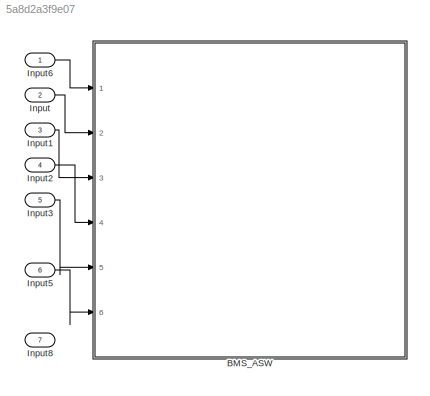
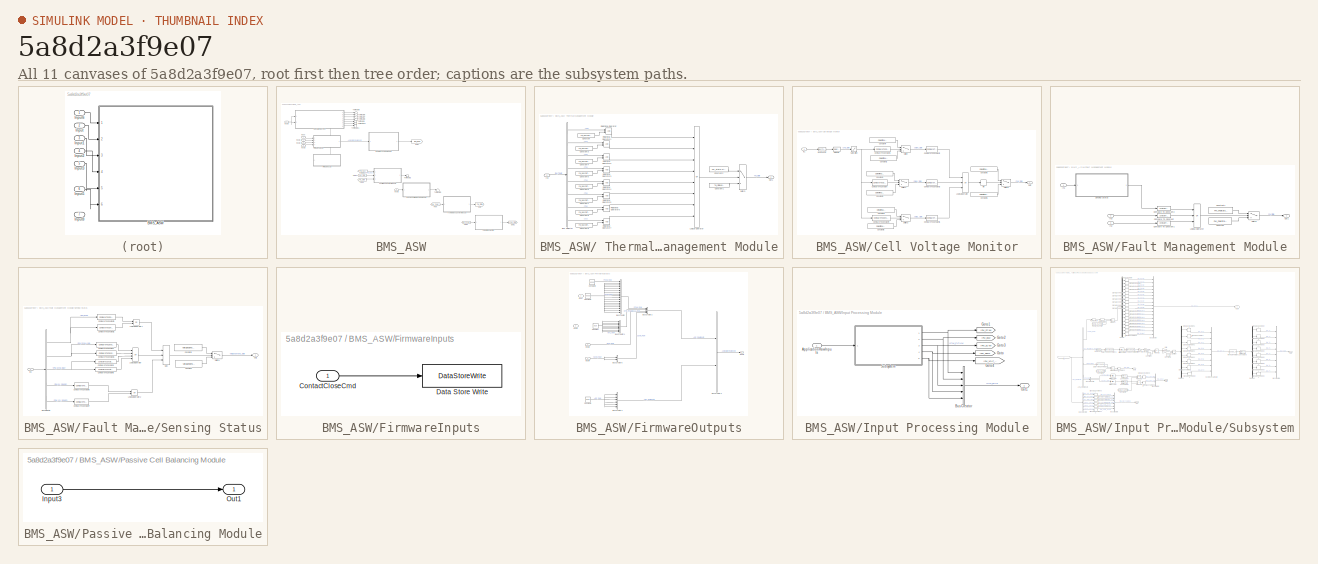
[diagram: thumbnail index - all 11 canvases of the model, root first then tree order]
MODEL slx_5a8d2a3f9e07
KIND model
CONFIG AbsTol = auto
CONFIG EnableMultiTasking = off
CONFIG FixedStep = auto
CONFIG MaxStep = auto
CONFIG MinStep = auto
CONFIG RelTol = 1e-3
CONFIG SampleTimeConstraint = Unconstrained
CONFIG SolverName = VariableStepAuto
CONFIG StartTime = 0.0
CONFIG StopTime = 10.0
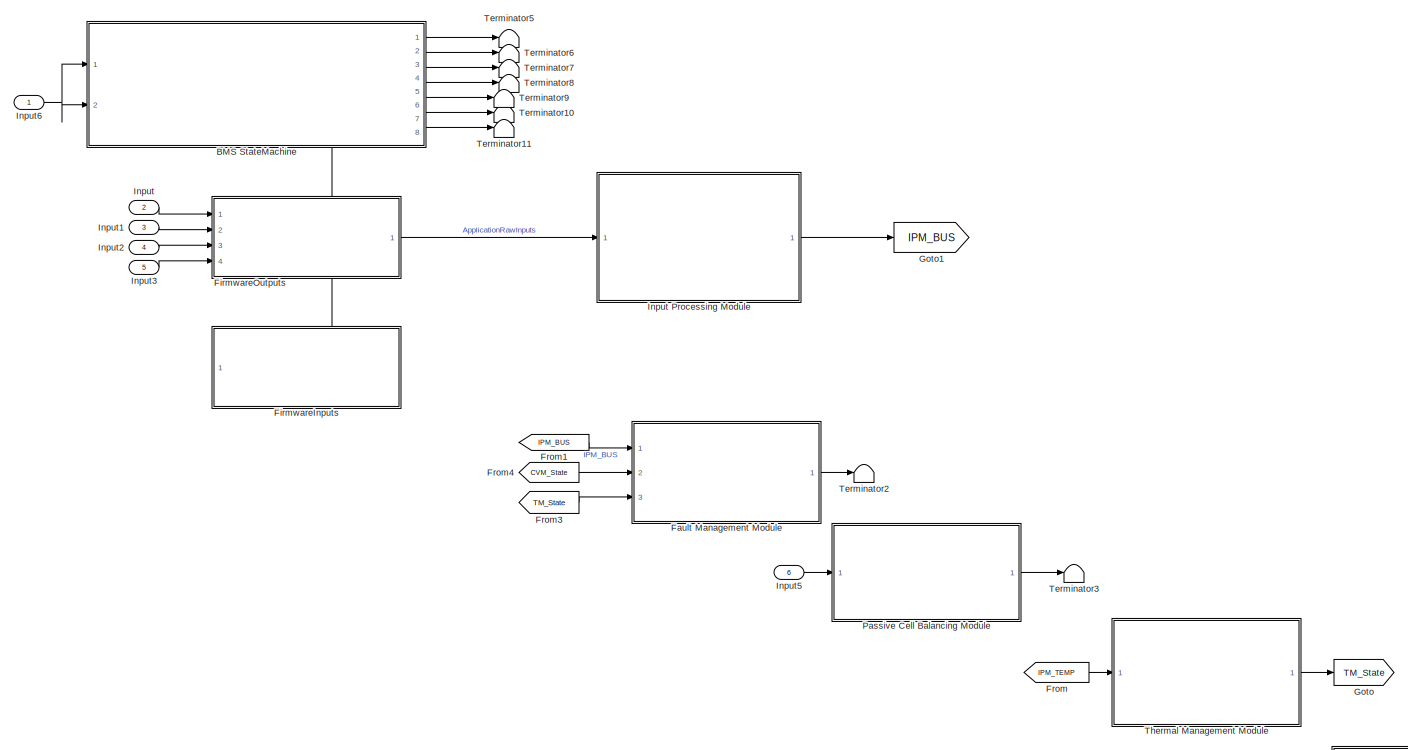
[diagram: BMS_ASW - part 1/2, most of the canvas]
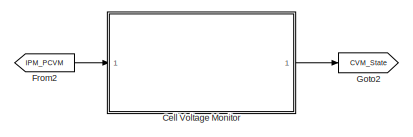
[diagram: BMS_ASW - part 2/2, bottom right region]
BLOCK [SubSystem] BMS_ASW
  Ports = [6]
  RequestExecContextInheritance = off
  ShowPortLabels = SignalName
BLOCK [SubSystem] BMS_ASW/ Thermal Management Module
  Ports = [1, 1]
  RequestExecContextInheritance = off
  ShowPortLabels = SignalName
BLOCK [BusSelector] BMS_ASW/ Thermal Management Module/Bus Selector
  OutputSignals = T0,T1,T2,T3,T4,T5,T6,T7
  Ports = [1, 8]
BLOCK [Constant] BMS_ASW/ Thermal Management Module/Constant
  OutDataTypeStr = single
  Value = FM_MaxCellTemp
BLOCK [Constant] BMS_ASW/ Thermal Management Module/Constant1
  OutDataTypeStr = Enum: TM_State
  Value = TM_State.NORMAL
BLOCK [Constant] BMS_ASW/ Thermal Management Module/Constant2
  OutDataTypeStr = Enum: TM_State
  Value = TM_State.FAULT
BLOCK [Constant] BMS_ASW/ Thermal Management Module/Constant3
  OutDataTypeStr = single
  Value = FM_MaxCellTemp
BLOCK [Constant] BMS_ASW/ Thermal Management Module/Constant4
  OutDataTypeStr = single
  Value = FM_MaxCellTemp
BLOCK [Constant] BMS_ASW/ Thermal Management Module/Constant5
  OutDataTypeStr = single
  Value = FM_MaxCellTemp
BLOCK [Constant] BMS_ASW/ Thermal Management Module/Constant6
  OutDataTypeStr = single
  Value = FM_MaxCellTemp
BLOCK [Constant] BMS_ASW/ Thermal Management Module/Constant7
  OutDataTypeStr = single
  Value = FM_MaxCellTemp
BLOCK [Constant] BMS_ASW/ Thermal Management Module/Constant8
  OutDataTypeStr = single
  Value = FM_MaxCellTemp
BLOCK [Constant] BMS_ASW/ Thermal Management Module/Constant9
  OutDataTypeStr = single
  Value = FM_MaxCellTemp
BLOCK [Inport] BMS_ASW/ Thermal Management Module/In2
BLOCK [Logic] BMS_ASW/ Thermal Management Module/Logical Operator
  AllPortsSameDT = off
  Inputs = 8
  Operator = OR
  OutDataTypeStr = boolean
  Ports = [8, 1]
BLOCK [Outport] BMS_ASW/ Thermal Management Module/Out1
BLOCK [RelationalOperator] BMS_ASW/ Thermal Management Module/Relational Operator
  InputSameDT = off
  OutDataTypeStr = boolean
  Ports = [2, 1]
  RndMeth = Simplest
BLOCK [RelationalOperator] BMS_ASW/ Thermal Management Module/Relational Operator1
  InputSameDT = off
  OutDataTypeStr = boolean
  Ports = [2, 1]
  RndMeth = Simplest
BLOCK [RelationalOperator] BMS_ASW/ Thermal Management Module/Relational Operator2
  InputSameDT = off
  OutDataTypeStr = boolean
  Ports = [2, 1]
  RndMeth = Simplest
BLOCK [RelationalOperator] BMS_ASW/ Thermal Management Module/Relational Operator3
  InputSameDT = off
  OutDataTypeStr = boolean
  Ports = [2, 1]
  RndMeth = Simplest
BLOCK [RelationalOperator] BMS_ASW/ Thermal Management Module/Relational Operator4
  InputSameDT = off
  OutDataTypeStr = boolean
  Ports = [2, 1]
  RndMeth = Simplest
BLOCK [RelationalOperator] BMS_ASW/ Thermal Management Module/Relational Operator5
  InputSameDT = off
  OutDataTypeStr = boolean
  Ports = [2, 1]
  RndMeth = Simplest
BLOCK [RelationalOperator] BMS_ASW/ Thermal Management Module/Relational Operator6
  InputSameDT = off
  OutDataTypeStr = boolean
  Ports = [2, 1]
  RndMeth = Simplest
BLOCK [RelationalOperator] BMS_ASW/ Thermal Management Module/Relational Operator7
  InputSameDT = off
  OutDataTypeStr = boolean
  Ports = [2, 1]
  RndMeth = Simplest
BLOCK [Switch] BMS_ASW/ Thermal Management Module/Switch
  Criteria = u2 ~= 0
  InputSameDT = off
  SaturateOnIntegerOverflow = off
BLOCK [SubSystem] BMS_ASW/BMS StateMachine
  PortSchema = {"entries":[{"content":{"sides":[{"content":{"connectorIds":["Out1","In1","In2"]},"type":"ConnectorPlacement.EquallySpacedRectSide","uuid":"dc16a3f0-45ad-4628-8e0a-af4b5ce38429"},{"content":{"connectorIds":["Out2","Out3","Out4","Out5","Out6","Out7","Out8"],"side":"RIGHT"},"type":"ConnectorPlacement.EquallySpacedRectSide","uuid":"5db1e924-41b1-4ec2-a438-dc82d825ed1c"},{"content":{"connectorIds":[],...<+295ch>
  Ports = [2, 8]
  ReferencedSubsystem = BMS_Master_StateMachine1
  RequestExecContextInheritance = off
BLOCK [SubSystem] BMS_ASW/Cell Voltage Monitor
  Ports = [1, 1]
  RequestExecContextInheritance = off
  ShowPortLabels = SignalName
BLOCK [BusToVector] BMS_ASW/Cell Voltage Monitor/Bus to Vector
BLOCK [Reference] BMS_ASW/Cell Voltage Monitor/Compare To Constant  REF=simulink/Logic and Bit
Operations/Compare
To Constant
  Ports = [1, 1]
  SourceBlock = simulink/Logic and Bit\nOperations/Compare\nTo Constant
  SourceProductBaseCode = SL
  SourceType = Compare To Constant
BLOCK [Reference] BMS_ASW/Cell Voltage Monitor/Compare To Constant1  REF=simulink/Logic and Bit
Operations/Compare
To Constant
  Ports = [1, 1]
  SourceBlock = simulink/Logic and Bit\nOperations/Compare\nTo Constant
  SourceProductBaseCode = SL
  SourceType = Compare To Constant
BLOCK [Reference] BMS_ASW/Cell Voltage Monitor/Compare To Constant2  REF=simulink/Logic and Bit
Operations/Compare
To Constant
  Ports = [1, 1]
  SourceBlock = simulink/Logic and Bit\nOperations/Compare\nTo Constant
  SourceProductBaseCode = SL
  SourceType = Compare To Constant
BLOCK [Reference] BMS_ASW/Cell Voltage Monitor/Compare To Constant3  REF=simulink/Logic and Bit
Operations/Compare
To Constant
  Ports = [1, 1]
  SourceBlock = simulink/Logic and Bit\nOperations/Compare\nTo Constant
  SourceProductBaseCode = SL
  SourceType = Compare To Constant
BLOCK [Reference] BMS_ASW/Cell Voltage Monitor/Compare To Constant4  REF=simulink/Logic and Bit
Operations/Compare
To Constant
  Ports = [1, 1]
  SourceBlock = simulink/Logic and Bit\nOperations/Compare\nTo Constant
  SourceProductBaseCode = SL
  SourceType = Compare To Constant
BLOCK [Reference] BMS_ASW/Cell Voltage Monitor/Compare To Constant5  REF=simulink/Logic and Bit
Operations/Compare
To Constant
  Ports = [1, 1]
  SourceBlock = simulink/Logic and Bit\nOperations/Compare\nTo Constant
  SourceProductBaseCode = SL
  SourceType = Compare To Constant
BLOCK [Constant] BMS_ASW/Cell Voltage Monitor/Constant1
  Value = CellVoltFault_State.UV_FAULT
BLOCK [Constant] BMS_ASW/Cell Voltage Monitor/Constant2
  Value = CellVoltFault_State.OK
BLOCK [Constant] BMS_ASW/Cell Voltage Monitor/Constant3
  Value = CellVoltFault_State.OK
BLOCK [Constant] BMS_ASW/Cell Voltage Monitor/Constant4
  Value = CellVoltFault_State.OV_FAULT
BLOCK [Constant] BMS_ASW/Cell Voltage Monitor/Constant5
  Value = CellVoltFault_State.OK
BLOCK [Constant] BMS_ASW/Cell Voltage Monitor/Constant6
  Value = CellVoltFault_State.NOT_OK
BLOCK [Constant] BMS_ASW/Cell Voltage Monitor/Constant7
  Value = CellVoltFault_State.OPEN_WIRE
BLOCK [Constant] BMS_ASW/Cell Voltage Monitor/Constant8
  Value = CellVoltFault_State.OK
BLOCK [Inport] BMS_ASW/Cell Voltage Monitor/In1
BLOCK [Logic] BMS_ASW/Cell Voltage Monitor/Logical Operator
  AllPortsSameDT = off
  Inputs = 3
  Operator = OR
  OutDataTypeStr = boolean
  Ports = [3, 1]
BLOCK [MinMax] BMS_ASW/Cell Voltage Monitor/Min
  Function = max
  Ports = [1, 1]
BLOCK [Outport] BMS_ASW/Cell Voltage Monitor/Out2
BLOCK [Saturate] BMS_ASW/Cell Voltage Monitor/Saturation
  LowerLimit = 0
  UpperLimit = 5.0
BLOCK [Selector] BMS_ASW/Cell Voltage Monitor/Selector
  IndexOptions = Select all
  Indices = [1 18]
  InputPortWidth = 18
  OutputSizes = 1
  Ports = [1, 1]
BLOCK [Switch] BMS_ASW/Cell Voltage Monitor/Switch
  Criteria = u2 ~= 0
  InputSameDT = off
  SaturateOnIntegerOverflow = off
BLOCK [Switch] BMS_ASW/Cell Voltage Monitor/Switch1
  Criteria = u2 ~= 0
  InputSameDT = off
  SaturateOnIntegerOverflow = off
BLOCK [Switch] BMS_ASW/Cell Voltage Monitor/Switch2
  Criteria = u2 ~= 0
  InputSameDT = off
  SaturateOnIntegerOverflow = off
BLOCK [Switch] BMS_ASW/Cell Voltage Monitor/Switch3
  Criteria = u2 ~= 0
  InputSameDT = off
  SaturateOnIntegerOverflow = off
BLOCK [SubSystem] BMS_ASW/Fault Management Module
  Ports = [3, 1]
  RequestExecContextInheritance = off
BLOCK [Reference] BMS_ASW/Fault Management Module/Compare To Constant  REF=simulink/Logic and Bit
Operations/Compare
To Constant
  Ports = [1, 1]
  SourceBlock = simulink/Logic and Bit\nOperations/Compare\nTo Constant
  SourceProductBaseCode = SL
  SourceType = Compare To Constant
BLOCK [Reference] BMS_ASW/Fault Management Module/Compare To Constant1  REF=simulink/Logic and Bit
Operations/Compare
To Constant
  Ports = [1, 1]
  SourceBlock = simulink/Logic and Bit\nOperations/Compare\nTo Constant
  SourceProductBaseCode = SL
  SourceType = Compare To Constant
BLOCK [Reference] BMS_ASW/Fault Management Module/Compare To Constant2  REF=simulink/Logic and Bit
Operations/Compare
To Constant
  Ports = [1, 1]
  SourceBlock = simulink/Logic and Bit\nOperations/Compare\nTo Constant
  SourceProductBaseCode = SL
  SourceType = Compare To Constant
BLOCK [Constant] BMS_ASW/Fault Management Module/Constant
  Value = FM_FaultState.OK
BLOCK [Constant] BMS_ASW/Fault Management Module/Constant1
  Value = FM_FaultState.NOT_OK
BLOCK [Inport] BMS_ASW/Fault Management Module/In1
BLOCK [Inport] BMS_ASW/Fault Management Module/In2
  Port = 3
BLOCK [Inport] BMS_ASW/Fault Management Module/In3
  Port = 2
BLOCK [Logic] BMS_ASW/Fault Management Module/Logical Operator
  AllPortsSameDT = off
  Inputs = 3
  Operator = OR
  OutDataTypeStr = boolean
  Ports = [3, 1]
BLOCK [Outport] BMS_ASW/Fault Management Module/Out1
BLOCK [SubSystem] BMS_ASW/Fault Management Module/Sensing Status
  Ports = [1, 1]
  RequestExecContextInheritance = off
  ShowPortLabels = SignalName
BLOCK [BusSelector] BMS_ASW/Fault Management Module/Sensing Status/Bus Selector
  OutputSignals = IPM_BVM,IPM_SCVM.IPM_SCVM_LOW,IPM_SCVM.IPM_SCVM_HIGH,IPM_VOLT_SENSE.IPM_5V_SENSE,IPM_VOLT_SENSE.IPM_12V_SENSE
  Ports = [1, 5]
BLOCK [Reference] BMS_ASW/Fault Management Module/Sensing Status/Compare To Constant  REF=simulink/Logic and Bit
Operations/Compare
To Constant
  Ports = [1, 1]
  SourceBlock = simulink/Logic and Bit\nOperations/Compare\nTo Constant
  SourceProductBaseCode = SL
  SourceType = Compare To Constant
BLOCK [Reference] BMS_ASW/Fault Management Module/Sensing Status/Compare To Constant1  REF=simulink/Logic and Bit
Operations/Compare
To Constant
  Ports = [1, 1]
  SourceBlock = simulink/Logic and Bit\nOperations/Compare\nTo Constant
  SourceProductBaseCode = SL
  SourceType = Compare To Constant
BLOCK [Reference] BMS_ASW/Fault Management Module/Sensing Status/Compare To Constant2  REF=simulink/Logic and Bit
Operations/Compare
To Constant
  Ports = [1, 1]
  SourceBlock = simulink/Logic and Bit\nOperations/Compare\nTo Constant
  SourceProductBaseCode = SL
  SourceType = Compare To Constant
BLOCK [Reference] BMS_ASW/Fault Management Module/Sensing Status/Compare To Constant3  REF=simulink/Logic and Bit
Operations/Compare
To Constant
  Ports = [1, 1]
  SourceBlock = simulink/Logic and Bit\nOperations/Compare\nTo Constant
  SourceProductBaseCode = SL
  SourceType = Compare To Constant
BLOCK [Reference] BMS_ASW/Fault Management Module/Sensing Status/Compare To Constant4  REF=simulink/Logic and Bit
Operations/Compare
To Constant
  Ports = [1, 1]
  SourceBlock = simulink/Logic and Bit\nOperations/Compare\nTo Constant
  SourceProductBaseCode = SL
  SourceType = Compare To Constant
BLOCK [Reference] BMS_ASW/Fault Management Module/Sensing Status/Compare To Constant5  REF=simulink/Logic and Bit
Operations/Compare
To Constant
  Ports = [1, 1]
  SourceBlock = simulink/Logic and Bit\nOperations/Compare\nTo Constant
  SourceProductBaseCode = SL
  SourceType = Compare To Constant
BLOCK [Reference] BMS_ASW/Fault Management Module/Sensing Status/Compare To Constant6  REF=simulink/Logic and Bit
Operations/Compare
To Constant
  Ports = [1, 1]
  SourceBlock = simulink/Logic and Bit\nOperations/Compare\nTo Constant
  SourceProductBaseCode = SL
  SourceType = Compare To Constant
BLOCK [Reference] BMS_ASW/Fault Management Module/Sensing Status/Compare To Constant7  REF=simulink/Logic and Bit
Operations/Compare
To Constant
  Ports = [1, 1]
  SourceBlock = simulink/Logic and Bit\nOperations/Compare\nTo Constant
  SourceProductBaseCode = SL
  SourceType = Compare To Constant
BLOCK [Constant] BMS_ASW/Fault Management Module/Sensing Status/Constant
  Value = VoltageSensing_State.OK
BLOCK [Constant] BMS_ASW/Fault Management Module/Sensing Status/Constant1
  Value = VoltageSensing_State.NOT_OK
BLOCK [Inport] BMS_ASW/Fault Management Module/Sensing Status/In3
BLOCK [Logic] BMS_ASW/Fault Management Module/Sensing Status/Logical Operator
  AllPortsSameDT = off
  Inputs = 4
  Operator = OR
  OutDataTypeStr = boolean
  Ports = [4, 1]
BLOCK [Logic] BMS_ASW/Fault Management Module/Sensing Status/Logical Operator1
  AllPortsSameDT = off
  Operator = OR
  OutDataTypeStr = boolean
  Ports = [2, 1]
BLOCK [Logic] BMS_ASW/Fault Management Module/Sensing Status/Logical Operator2
  AllPortsSameDT = off
  Operator = OR
  OutDataTypeStr = boolean
  Ports = [2, 1]
BLOCK [MinMax] BMS_ASW/Fault Management Module/Sensing Status/Max
  Function = max
  Inputs = 3
  Ports = [3, 1]
BLOCK [Outport] BMS_ASW/Fault Management Module/Sensing Status/Out1
BLOCK [Switch] BMS_ASW/Fault Management Module/Sensing Status/Switch1
  Criteria = u2 ~= 0
  InputSameDT = off
  SaturateOnIntegerOverflow = off
BLOCK [Switch] BMS_ASW/Fault Management Module/Switch
  Criteria = u2 ~= 0
  InputSameDT = off
  SaturateOnIntegerOverflow = off
BLOCK [SubSystem] BMS_ASW/FirmwareInputs
  Ports = [1]
  RequestExecContextInheritance = off
BLOCK [Inport] BMS_ASW/FirmwareInputs/ContactCloseCmd
BLOCK [DataStoreWrite] BMS_ASW/FirmwareInputs/Data Store Write
  DataStoreName = ContactorCmd
  IndexOptions = Index vector (dialog)
  Indices = 1
  OutputSizes = 1
  Ports = [1]
BLOCK [SubSystem] BMS_ASW/FirmwareOutputs
  Ports = [4, 1]
  RequestExecContextInheritance = off
  ShowPortLabels = SignalName
BLOCK [BusCreator] BMS_ASW/FirmwareOutputs/Bus Creator
  DisplayOption = bar
  InheritFromInputs = off
  Inputs = 18
  OutDataTypeStr = Bus: PCVM_Raw
  Ports = [18, 1]
BLOCK [BusCreator] BMS_ASW/FirmwareOutputs/Bus Creator1
  DisplayOption = bar
  InheritFromInputs = off
  Inputs = 8
  OutDataTypeStr = Bus: NTC_Resistance_Raw
  Ports = [8, 1]
BLOCK [BusCreator] BMS_ASW/FirmwareOutputs/Bus Creator2
  DisplayOption = bar
  InheritFromInputs = off
  Inputs = 4
  OutDataTypeStr = Bus: AFE_RawInputs
  Ports = [4, 1]
BLOCK [BusCreator] BMS_ASW/FirmwareOutputs/Bus Creator3
  DisplayOption = bar
  InheritFromInputs = off
  Inputs = 2
  OutDataTypeStr = Bus: ApplicationRawInputs
  Ports = [2, 1]
BLOCK [BusCreator] BMS_ASW/FirmwareOutputs/Bus Creator4
  DisplayOption = bar
  InheritFromInputs = off
  Inputs = 6
  OutDataTypeStr = Bus: ADC_RawInputs
  Ports = [6, 1]
BLOCK [BusCreator] BMS_ASW/FirmwareOutputs/Bus Creator5
  DisplayOption = bar
  InheritFromInputs = on
  Inputs = 2
  Ports = [2, 1]
BLOCK [Constant] BMS_ASW/FirmwareOutputs/Constant
  OutDataTypeStr = uint16
  Value = 528
BLOCK [Constant] BMS_ASW/FirmwareOutputs/Constant1
  OutDataTypeStr = uint16
  Value = 40000
BLOCK [Constant] BMS_ASW/FirmwareOutputs/Constant2
  OutDataTypeStr = uint16
  Value = 16000
BLOCK [Constant] BMS_ASW/FirmwareOutputs/Constant3
  OutDataTypeStr = single
  Value = 4.925
BLOCK [Inport] BMS_ASW/FirmwareOutputs/Input
  OutDataTypeStr = uint16
BLOCK [Inport] BMS_ASW/FirmwareOutputs/Input1
  OutDataTypeStr = uint16
  Port = 2
BLOCK [Inport] BMS_ASW/FirmwareOutputs/Input2
  OutDataTypeStr = uint16
  Port = 3
BLOCK [Outport] BMS_ASW/FirmwareOutputs/Input3
BLOCK [Inport] BMS_ASW/FirmwareOutputs/Input4
  OutDataTypeStr = uint16
  Port = 4
BLOCK [From] BMS_ASW/From
  GotoTag = IPM_TEMP
  TagVisibility = global
BLOCK [From] BMS_ASW/From1
  GotoTag = IPM_BUS
  TagVisibility = global
BLOCK [From] BMS_ASW/From2
  GotoTag = IPM_PCVM
  TagVisibility = global
BLOCK [From] BMS_ASW/From3
  GotoTag = TM_State
  TagVisibility = global
BLOCK [From] BMS_ASW/From4
  GotoTag = CVM_State
  TagVisibility = global
BLOCK [Goto] BMS_ASW/Goto
  GotoTag = TM_State
  TagVisibility = global
BLOCK [Goto] BMS_ASW/Goto1
  GotoTag = IPM_BUS
  TagVisibility = global
BLOCK [Goto] BMS_ASW/Goto2
  GotoTag = CVM_State
  TagVisibility = global
BLOCK [Inport] BMS_ASW/Input
  Port = 2
BLOCK [SubSystem] BMS_ASW/Input Processing Module
  Ports = [1, 1]
  RequestExecContextInheritance = off
  ShowPortLabels = SignalName
BLOCK [Inport] BMS_ASW/Input Processing Module/ApplicationRawInputs
BLOCK [BusCreator] BMS_ASW/Input Processing Module/Bus Creator
  DisplayOption = bar
  InheritFromInputs = on
  Inputs = 5
  Ports = [5, 1]
BLOCK [Goto] BMS_ASW/Input Processing Module/Goto
  GotoTag = IPM_TEMP
  TagVisibility = global
BLOCK [Goto] BMS_ASW/Input Processing Module/Goto1
  GotoTag = IPM_PCVM
  TagVisibility = global
BLOCK [Goto] BMS_ASW/Input Processing Module/Goto2
  GotoTag = IPM_BVM
  TagVisibility = global
BLOCK [Goto] BMS_ASW/Input Processing Module/Goto3
  GotoTag = IPM_SCVM
  TagVisibility = global
BLOCK [Goto] BMS_ASW/Input Processing Module/Goto4
  GotoTag = IPM_VOLT_SENSE
  TagVisibility = global
BLOCK [Outport] BMS_ASW/Input Processing Module/Out1
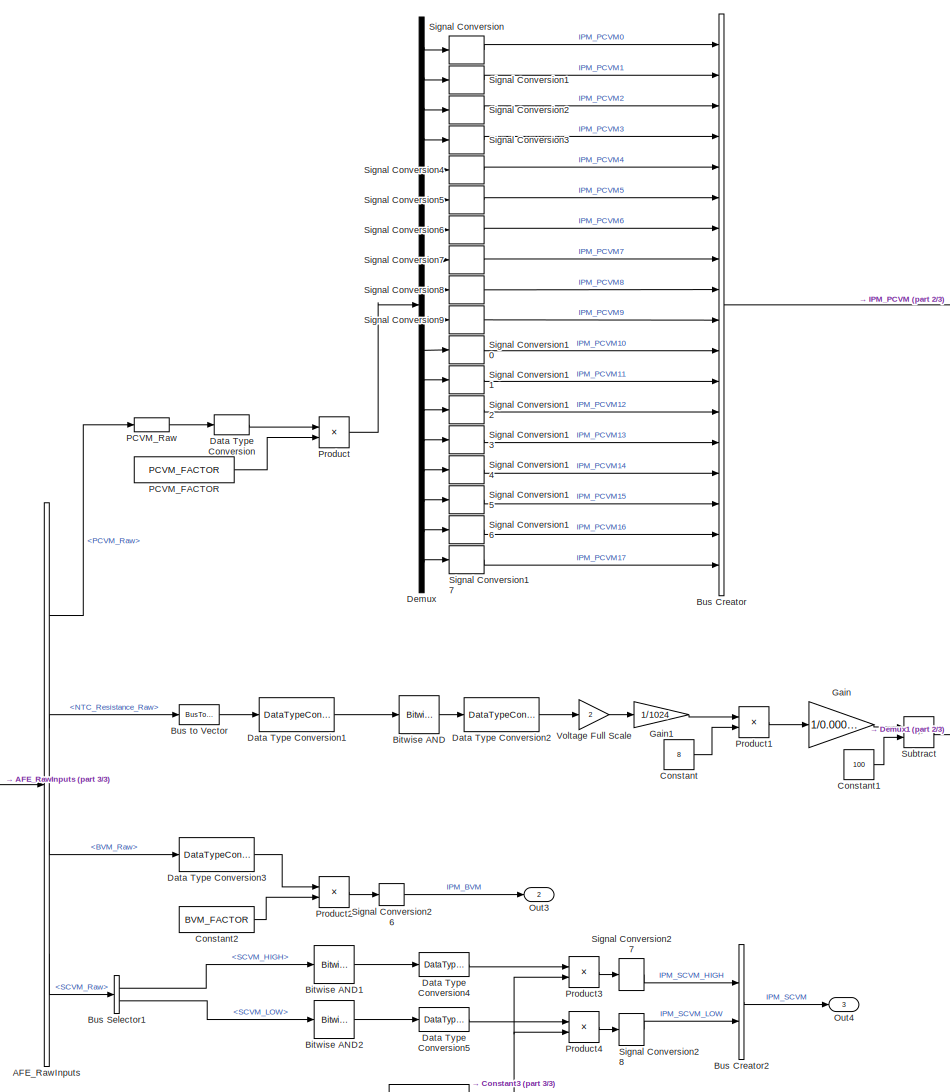
[diagram: BMS_ASW/Input Processing Module/Subsystem - part 1/3, left side, full height]
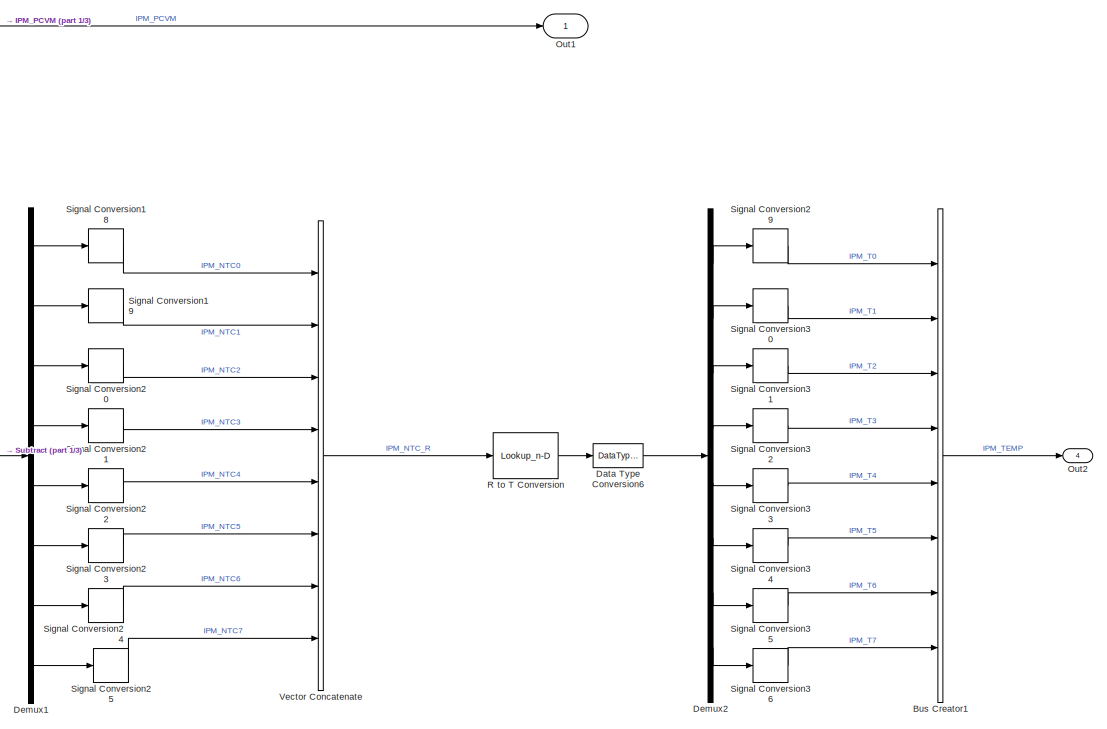
[diagram: BMS_ASW/Input Processing Module/Subsystem - part 2/3, middle right region]
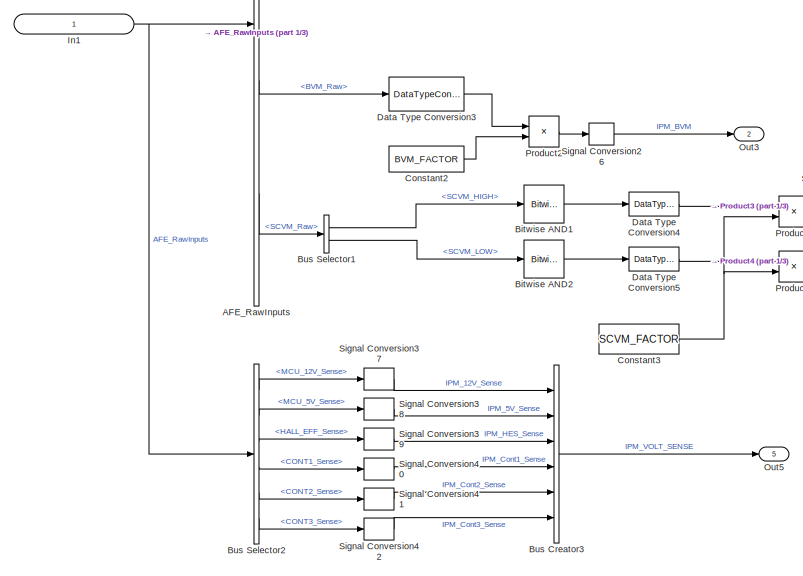
[diagram: BMS_ASW/Input Processing Module/Subsystem - part 3/3, bottom left region]
BLOCK [SubSystem] BMS_ASW/Input Processing Module/Subsystem
  Ports = [1, 5]
  RequestExecContextInheritance = off
  ShowPortLabels = SignalName
BLOCK [BusSelector] BMS_ASW/Input Processing Module/Subsystem/AFE_RawInputs
  OutputSignals = AFE_RawInputs.PCVM_Raw,AFE_RawInputs.NTC_Resistance_Raw,AFE_RawInputs.BVM_Raw,AFE_RawInputs.SCVM_Raw
  Ports = [1, 4]
BLOCK [Reference] BMS_ASW/Input Processing Module/Subsystem/Bitwise AND  REF=simulink/Logic and Bit
Operations/Bitwise
Operator
  Ports = [1, 1]
  SourceBlock = simulink/Logic and Bit\nOperations/Bitwise\nOperator
  SourceProductBaseCode = SL
  SourceType = Bitwise Operator
BLOCK [Reference] BMS_ASW/Input Processing Module/Subsystem/Bitwise AND1  REF=simulink/Logic and Bit
Operations/Bitwise
Operator
  Ports = [1, 1]
  SourceBlock = simulink/Logic and Bit\nOperations/Bitwise\nOperator
  SourceProductBaseCode = SL
  SourceType = Bitwise Operator
BLOCK [Reference] BMS_ASW/Input Processing Module/Subsystem/Bitwise AND2  REF=simulink/Logic and Bit
Operations/Bitwise
Operator
  Ports = [1, 1]
  SourceBlock = simulink/Logic and Bit\nOperations/Bitwise\nOperator
  SourceProductBaseCode = SL
  SourceType = Bitwise Operator
BLOCK [BusCreator] BMS_ASW/Input Processing Module/Subsystem/Bus Creator
  DisplayOption = bar
  InheritFromInputs = on
  Inputs = 18
  OutDataTypeStr = Bus: IPM_PCVM
  Ports = [18, 1]
BLOCK [BusCreator] BMS_ASW/Input Processing Module/Subsystem/Bus Creator1
  DisplayOption = bar
  InheritFromInputs = off
  Inputs = 8
  OutDataTypeStr = Bus: IPM_TEMP
  Ports = [8, 1]
BLOCK [BusCreator] BMS_ASW/Input Processing Module/Subsystem/Bus Creator2
  DisplayOption = bar
  InheritFromInputs = on
  Inputs = 2
  OutDataTypeStr = Bus: IPM_SCVM
  Ports = [2, 1]
BLOCK [BusCreator] BMS_ASW/Input Processing Module/Subsystem/Bus Creator3
  DisplayOption = bar
  InheritFromInputs = off
  Inputs = 6
  OutDataTypeStr = Bus: IPM_VOLT_SENSE
  Ports = [6, 1]
BLOCK [BusSelector] BMS_ASW/Input Processing Module/Subsystem/Bus Selector1
  OutputSignals = SCVM_HIGH,SCVM_LOW
  Ports = [1, 2]
BLOCK [BusSelector] BMS_ASW/Input Processing Module/Subsystem/Bus Selector2
  OutputSignals = ADC_RawInputs.MCU_12V_Sense,ADC_RawInputs.MCU_5V_Sense,ADC_RawInputs.HALL_EFF_Sense,ADC_RawInputs.CONT1_Sense,ADC_RawInputs.CONT2_Sense,ADC_RawInputs.CONT3_Sense
  Ports = [1, 6]
BLOCK [BusToVector] BMS_ASW/Input Processing Module/Subsystem/Bus to Vector
BLOCK [Constant] BMS_ASW/Input Processing Module/Subsystem/Constant
  OutDataTypeStr = single
  Value = 8
BLOCK [Constant] BMS_ASW/Input Processing Module/Subsystem/Constant1
  OutDataTypeStr = single
  Value = 100
BLOCK [Constant] BMS_ASW/Input Processing Module/Subsystem/Constant2
  OutDataTypeStr = single
  Value = BVM_FACTOR
BLOCK [Constant] BMS_ASW/Input Processing Module/Subsystem/Constant3
  OutDataTypeStr = single
  Value = SCVM_FACTOR
BLOCK [DataTypeConversion] BMS_ASW/Input Processing Module/Subsystem/Data Type Conversion
  OutDataTypeStr = single
  RndMeth = Floor
  SaturateOnIntegerOverflow = off
BLOCK [DataTypeConversion] BMS_ASW/Input Processing Module/Subsystem/Data Type Conversion1
  OutDataTypeStr = uint16
  RndMeth = Floor
  SaturateOnIntegerOverflow = off
BLOCK [DataTypeConversion] BMS_ASW/Input Processing Module/Subsystem/Data Type Conversion2
  OutDataTypeStr = single
  RndMeth = Floor
  SaturateOnIntegerOverflow = off
BLOCK [DataTypeConversion] BMS_ASW/Input Processing Module/Subsystem/Data Type Conversion3
  OutDataTypeStr = single
  RndMeth = Floor
  SaturateOnIntegerOverflow = off
BLOCK [DataTypeConversion] BMS_ASW/Input Processing Module/Subsystem/Data Type Conversion4
  OutDataTypeStr = single
  RndMeth = Floor
  SaturateOnIntegerOverflow = off
BLOCK [DataTypeConversion] BMS_ASW/Input Processing Module/Subsystem/Data Type Conversion5
  OutDataTypeStr = single
  RndMeth = Floor
  SaturateOnIntegerOverflow = off
BLOCK [DataTypeConversion] BMS_ASW/Input Processing Module/Subsystem/Data Type Conversion6
  OutDataTypeStr = single
  RndMeth = Floor
  SaturateOnIntegerOverflow = off
BLOCK [Demux] BMS_ASW/Input Processing Module/Subsystem/Demux
  Outputs = 18
  Ports = [1, 18]
BLOCK [Demux] BMS_ASW/Input Processing Module/Subsystem/Demux1
  Outputs = 8
  Ports = [1, 8]
BLOCK [Demux] BMS_ASW/Input Processing Module/Subsystem/Demux2
  Outputs = 8
  Ports = [1, 8]
BLOCK [Gain] BMS_ASW/Input Processing Module/Subsystem/Gain
  Gain = 1/0.00064
  OutDataTypeStr = single
BLOCK [Gain] BMS_ASW/Input Processing Module/Subsystem/Gain1
  Gain = 1/1024
BLOCK [Inport] BMS_ASW/Input Processing Module/Subsystem/In1
  IconDisplay = Signal name
BLOCK [Outport] BMS_ASW/Input Processing Module/Subsystem/Out1
BLOCK [Outport] BMS_ASW/Input Processing Module/Subsystem/Out2
  Port = 4
BLOCK [Outport] BMS_ASW/Input Processing Module/Subsystem/Out3
  Port = 2
BLOCK [Outport] BMS_ASW/Input Processing Module/Subsystem/Out4
  Port = 3
BLOCK [Outport] BMS_ASW/Input Processing Module/Subsystem/Out5
  Port = 5
BLOCK [Constant] BMS_ASW/Input Processing Module/Subsystem/PCVM_FACTOR
  OutDataTypeStr = single
  Value = PCVM_FACTOR
BLOCK [BusToVector] BMS_ASW/Input Processing Module/Subsystem/PCVM_Raw
BLOCK [Product] BMS_ASW/Input Processing Module/Subsystem/Product
  Ports = [2, 1]
BLOCK [Product] BMS_ASW/Input Processing Module/Subsystem/Product1
  Ports = [2, 1]
BLOCK [Product] BMS_ASW/Input Processing Module/Subsystem/Product2
  Ports = [2, 1]
BLOCK [Product] BMS_ASW/Input Processing Module/Subsystem/Product3
  Ports = [2, 1]
BLOCK [Product] BMS_ASW/Input Processing Module/Subsystem/Product4
  Ports = [2, 1]
BLOCK [Lookup_n-D] BMS_ASW/Input Processing Module/Subsystem/R to T Conversion
  BreakpointsForDimension1 = [168.13 188.95 212.85 240.34 271.92 308.44 350.59 399.63 457.33 524.93 ...\n 603.97 697.22 808.96 941.79 1100.2 1290.1 1518.3 1794.2 2128.3 2535.9 ...\n 3039.3 3661 4423.5 5372 6569 8080 10000 12474 15618 19691 25011 32014 ...\n 41505 54308 71172 94143 125550 169150 230060 316180 439340 617590 878900]
  DiagnosticForOutOfRangeInput = Warning
  InputPortMap = u0
  InputSameDT = off
  InternalRulePriority = Speed
  NumberOfTableDimensions = 1
  Ports = [1, 1]
  RndMeth = Simplest
  Table = [155 150 145 140 135 130 125 120 115 110 105 100 95 90 85 80 75 70 65 60 ...\n 55 50 45 40 35 30 25 20 15 10 5 0 -5 -10 -15 -20 -25 -30 -35 -40 -45 -50 -55]
BLOCK [SignalConversion] BMS_ASW/Input Processing Module/Subsystem/Signal Conversion
  OverrideOpt = off
BLOCK [SignalConversion] BMS_ASW/Input Processing Module/Subsystem/Signal Conversion1
  OverrideOpt = off
BLOCK [SignalConversion] BMS_ASW/Input Processing Module/Subsystem/Signal Conversion10
  OverrideOpt = off
BLOCK [SignalConversion] BMS_ASW/Input Processing Module/Subsystem/Signal Conversion11
  OverrideOpt = off
BLOCK [SignalConversion] BMS_ASW/Input Processing Module/Subsystem/Signal Conversion12
  OverrideOpt = off
BLOCK [SignalConversion] BMS_ASW/Input Processing Module/Subsystem/Signal Conversion13
  OverrideOpt = off
BLOCK [SignalConversion] BMS_ASW/Input Processing Module/Subsystem/Signal Conversion14
  OverrideOpt = off
BLOCK [SignalConversion] BMS_ASW/Input Processing Module/Subsystem/Signal Conversion15
  OverrideOpt = off
BLOCK [SignalConversion] BMS_ASW/Input Processing Module/Subsystem/Signal Conversion16
  OverrideOpt = off
BLOCK [SignalConversion] BMS_ASW/Input Processing Module/Subsystem/Signal Conversion17
  OverrideOpt = off
BLOCK [SignalConversion] BMS_ASW/Input Processing Module/Subsystem/Signal Conversion18
  OverrideOpt = off
BLOCK [SignalConversion] BMS_ASW/Input Processing Module/Subsystem/Signal Conversion19
  OverrideOpt = off
BLOCK [SignalConversion] BMS_ASW/Input Processing Module/Subsystem/Signal Conversion2
  OverrideOpt = off
BLOCK [SignalConversion] BMS_ASW/Input Processing Module/Subsystem/Signal Conversion20
  OverrideOpt = off
BLOCK [SignalConversion] BMS_ASW/Input Processing Module/Subsystem/Signal Conversion21
  OverrideOpt = off
BLOCK [SignalConversion] BMS_ASW/Input Processing Module/Subsystem/Signal Conversion22
  OverrideOpt = off
BLOCK [SignalConversion] BMS_ASW/Input Processing Module/Subsystem/Signal Conversion23
  OverrideOpt = off
BLOCK [SignalConversion] BMS_ASW/Input Processing Module/Subsystem/Signal Conversion24
  OverrideOpt = off
BLOCK [SignalConversion] BMS_ASW/Input Processing Module/Subsystem/Signal Conversion25
  OverrideOpt = off
BLOCK [SignalConversion] BMS_ASW/Input Processing Module/Subsystem/Signal Conversion26
  OverrideOpt = off
BLOCK [SignalConversion] BMS_ASW/Input Processing Module/Subsystem/Signal Conversion27
  OverrideOpt = off
BLOCK [SignalConversion] BMS_ASW/Input Processing Module/Subsystem/Signal Conversion28
  OverrideOpt = off
BLOCK [SignalConversion] BMS_ASW/Input Processing Module/Subsystem/Signal Conversion29
  OverrideOpt = off
BLOCK [SignalConversion] BMS_ASW/Input Processing Module/Subsystem/Signal Conversion3
  OverrideOpt = off
BLOCK [SignalConversion] BMS_ASW/Input Processing Module/Subsystem/Signal Conversion30
  OverrideOpt = off
BLOCK [SignalConversion] BMS_ASW/Input Processing Module/Subsystem/Signal Conversion31
  OverrideOpt = off
BLOCK [SignalConversion] BMS_ASW/Input Processing Module/Subsystem/Signal Conversion32
  OverrideOpt = off
BLOCK [SignalConversion] BMS_ASW/Input Processing Module/Subsystem/Signal Conversion33
  OverrideOpt = off
BLOCK [SignalConversion] BMS_ASW/Input Processing Module/Subsystem/Signal Conversion34
  OverrideOpt = off
BLOCK [SignalConversion] BMS_ASW/Input Processing Module/Subsystem/Signal Conversion35
  OverrideOpt = off
BLOCK [SignalConversion] BMS_ASW/Input Processing Module/Subsystem/Signal Conversion36
  OverrideOpt = off
BLOCK [SignalConversion] BMS_ASW/Input Processing Module/Subsystem/Signal Conversion37
  OverrideOpt = off
BLOCK [SignalConversion] BMS_ASW/Input Processing Module/Subsystem/Signal Conversion38
  OverrideOpt = off
BLOCK [SignalConversion] BMS_ASW/Input Processing Module/Subsystem/Signal Conversion39
  OverrideOpt = off
BLOCK [SignalConversion] BMS_ASW/Input Processing Module/Subsystem/Signal Conversion4
  OverrideOpt = off
BLOCK [SignalConversion] BMS_ASW/Input Processing Module/Subsystem/Signal Conversion40
  OverrideOpt = off
BLOCK [SignalConversion] BMS_ASW/Input Processing Module/Subsystem/Signal Conversion41
  OverrideOpt = off
BLOCK [SignalConversion] BMS_ASW/Input Processing Module/Subsystem/Signal Conversion42
  OverrideOpt = off
BLOCK [SignalConversion] BMS_ASW/Input Processing Module/Subsystem/Signal Conversion5
  OverrideOpt = off
BLOCK [SignalConversion] BMS_ASW/Input Processing Module/Subsystem/Signal Conversion6
  OverrideOpt = off
BLOCK [SignalConversion] BMS_ASW/Input Processing Module/Subsystem/Signal Conversion7
  OverrideOpt = off
BLOCK [SignalConversion] BMS_ASW/Input Processing Module/Subsystem/Signal Conversion8
  OverrideOpt = off
BLOCK [SignalConversion] BMS_ASW/Input Processing Module/Subsystem/Signal Conversion9
  OverrideOpt = off
BLOCK [Sum] BMS_ASW/Input Processing Module/Subsystem/Subtract
  IconShape = rectangular
  Inputs = +-
  Ports = [2, 1]
BLOCK [Concatenate] BMS_ASW/Input Processing Module/Subsystem/Vector Concatenate
  NumInputs = 8
  Ports = [8, 1]
BLOCK [Gain] BMS_ASW/Input Processing Module/Subsystem/Voltage Full Scale
  Gain = 2
  OutDataTypeStr = single
BLOCK [Inport] BMS_ASW/Input1
  Port = 3
BLOCK [Inport] BMS_ASW/Input2
  Port = 4
BLOCK [Inport] BMS_ASW/Input3
  Port = 5
BLOCK [Inport] BMS_ASW/Input5
  Port = 6
BLOCK [Inport] BMS_ASW/Input6
BLOCK [SubSystem] BMS_ASW/Passive Cell Balancing Module
  Ports = [1, 1]
  RequestExecContextInheritance = off
BLOCK [Inport] BMS_ASW/Passive Cell Balancing Module/Input3
BLOCK [Outport] BMS_ASW/Passive Cell Balancing Module/Out1
BLOCK [Terminator] BMS_ASW/Terminator10
BLOCK [Terminator] BMS_ASW/Terminator11
BLOCK [Terminator] BMS_ASW/Terminator2
BLOCK [Terminator] BMS_ASW/Terminator3
BLOCK [Terminator] BMS_ASW/Terminator5
BLOCK [Terminator] BMS_ASW/Terminator6
BLOCK [Terminator] BMS_ASW/Terminator7
BLOCK [Terminator] BMS_ASW/Terminator8
BLOCK [Terminator] BMS_ASW/Terminator9
BLOCK [Inport] Input
  Port = 2
BLOCK [Inport] Input1
  Port = 3
BLOCK [Inport] Input2
  Port = 4
BLOCK [Inport] Input3
  Port = 5
BLOCK [Inport] Input5
  Port = 6
BLOCK [Inport] Input6
BLOCK [Inport] Input8
  Port = 7
LINE BMS_ASW/ Thermal Management Module/Bus Selector:1 -> BMS_ASW/ Thermal Management Module/Relational Operator:1
LINE BMS_ASW/ Thermal Management Module/Bus Selector:2 -> BMS_ASW/ Thermal Management Module/Relational Operator1:1
LINE BMS_ASW/ Thermal Management Module/Bus Selector:3 -> BMS_ASW/ Thermal Management Module/Relational Operator2:1
LINE BMS_ASW/ Thermal Management Module/Bus Selector:4 -> BMS_ASW/ Thermal Management Module/Relational Operator3:1
LINE BMS_ASW/ Thermal Management Module/Bus Selector:5 -> BMS_ASW/ Thermal Management Module/Relational Operator4:1
LINE BMS_ASW/ Thermal Management Module/Bus Selector:6 -> BMS_ASW/ Thermal Management Module/Relational Operator5:1
LINE BMS_ASW/ Thermal Management Module/Bus Selector:7 -> BMS_ASW/ Thermal Management Module/Relational Operator6:1
LINE BMS_ASW/ Thermal Management Module/Bus Selector:8 -> BMS_ASW/ Thermal Management Module/Relational Operator7:1
LINE BMS_ASW/ Thermal Management Module/Constant1:1 -> BMS_ASW/ Thermal Management Module/Switch:3
LINE BMS_ASW/ Thermal Management Module/Constant2:1 -> BMS_ASW/ Thermal Management Module/Switch:1
LINE BMS_ASW/ Thermal Management Module/Constant3:1 -> BMS_ASW/ Thermal Management Module/Relational Operator1:2
LINE BMS_ASW/ Thermal Management Module/Constant4:1 -> BMS_ASW/ Thermal Management Module/Relational Operator2:2
LINE BMS_ASW/ Thermal Management Module/Constant5:1 -> BMS_ASW/ Thermal Management Module/Relational Operator3:2
LINE BMS_ASW/ Thermal Management Module/Constant6:1 -> BMS_ASW/ Thermal Management Module/Relational Operator4:2
LINE BMS_ASW/ Thermal Management Module/Constant7:1 -> BMS_ASW/ Thermal Management Module/Relational Operator5:2
LINE BMS_ASW/ Thermal Management Module/Constant8:1 -> BMS_ASW/ Thermal Management Module/Relational Operator6:2
LINE BMS_ASW/ Thermal Management Module/Constant9:1 -> BMS_ASW/ Thermal Management Module/Relational Operator7:2
LINE BMS_ASW/ Thermal Management Module/Constant:1 -> BMS_ASW/ Thermal Management Module/Relational Operator:2
LINE BMS_ASW/ Thermal Management Module/In2:1 -> BMS_ASW/ Thermal Management Module/Bus Selector:1
LINE BMS_ASW/ Thermal Management Module/Logical Operator:1 -> BMS_ASW/ Thermal Management Module/Switch:2
LINE BMS_ASW/ Thermal Management Module/Relational Operator1:1 -> BMS_ASW/ Thermal Management Module/Logical Operator:2
LINE BMS_ASW/ Thermal Management Module/Relational Operator2:1 -> BMS_ASW/ Thermal Management Module/Logical Operator:3
LINE BMS_ASW/ Thermal Management Module/Relational Operator3:1 -> BMS_ASW/ Thermal Management Module/Logical Operator:4
LINE BMS_ASW/ Thermal Management Module/Relational Operator4:1 -> BMS_ASW/ Thermal Management Module/Logical Operator:5
LINE BMS_ASW/ Thermal Management Module/Relational Operator5:1 -> BMS_ASW/ Thermal Management Module/Logical Operator:6
LINE BMS_ASW/ Thermal Management Module/Relational Operator6:1 -> BMS_ASW/ Thermal Management Module/Logical Operator:7
LINE BMS_ASW/ Thermal Management Module/Relational Operator7:1 -> BMS_ASW/ Thermal Management Module/Logical Operator:8
LINE BMS_ASW/ Thermal Management Module/Relational Operator:1 -> BMS_ASW/ Thermal Management Module/Logical Operator:1
LINE BMS_ASW/ Thermal Management Module/Switch:1 -> BMS_ASW/ Thermal Management Module/Out1:1
LINE BMS_ASW/ Thermal Management Module:1 -> BMS_ASW/Goto:1
LINE BMS_ASW/BMS StateMachine:1 -> BMS_ASW/FirmwareInputs:1
LINE BMS_ASW/BMS StateMachine:2 -> BMS_ASW/Terminator5:1
LINE BMS_ASW/BMS StateMachine:3 -> BMS_ASW/Terminator6:1
LINE BMS_ASW/BMS StateMachine:4 -> BMS_ASW/Terminator7:1
LINE BMS_ASW/BMS StateMachine:5 -> BMS_ASW/Terminator8:1
LINE BMS_ASW/BMS StateMachine:6 -> BMS_ASW/Terminator9:1
LINE BMS_ASW/BMS StateMachine:7 -> BMS_ASW/Terminator10:1
LINE BMS_ASW/BMS StateMachine:8 -> BMS_ASW/Terminator11:1
LINE BMS_ASW/Cell Voltage Monitor/Bus to Vector:1 -> BMS_ASW/Cell Voltage Monitor/Selector:1
LINE BMS_ASW/Cell Voltage Monitor/Compare To Constant1:1 -> BMS_ASW/Cell Voltage Monitor/Switch:2
LINE BMS_ASW/Cell Voltage Monitor/Compare To Constant2:1 -> BMS_ASW/Cell Voltage Monitor/Logical Operator:1
LINE BMS_ASW/Cell Voltage Monitor/Compare To Constant3:1 -> BMS_ASW/Cell Voltage Monitor/Logical Operator:2
LINE BMS_ASW/Cell Voltage Monitor/Compare To Constant4:1 -> BMS_ASW/Cell Voltage Monitor/Switch3:2
LINE BMS_ASW/Cell Voltage Monitor/Compare To Constant5:1 -> BMS_ASW/Cell Voltage Monitor/Logical Operator:3
LINE BMS_ASW/Cell Voltage Monitor/Compare To Constant:1 -> BMS_ASW/Cell Voltage Monitor/Switch1:2
LINE BMS_ASW/Cell Voltage Monitor/Constant1:1 -> BMS_ASW/Cell Voltage Monitor/Switch1:1
LINE BMS_ASW/Cell Voltage Monitor/Constant2:1 -> BMS_ASW/Cell Voltage Monitor/Switch:3
LINE BMS_ASW/Cell Voltage Monitor/Constant3:1 -> BMS_ASW/Cell Voltage Monitor/Switch1:3
LINE BMS_ASW/Cell Voltage Monitor/Constant4:1 -> BMS_ASW/Cell Voltage Monitor/Switch:1
LINE BMS_ASW/Cell Voltage Monitor/Constant5:1 -> BMS_ASW/Cell Voltage Monitor/Switch2:3
LINE BMS_ASW/Cell Voltage Monitor/Constant6:1 -> BMS_ASW/Cell Voltage Monitor/Switch2:1
LINE BMS_ASW/Cell Voltage Monitor/Constant7:1 -> BMS_ASW/Cell Voltage Monitor/Switch3:1
LINE BMS_ASW/Cell Voltage Monitor/Constant8:1 -> BMS_ASW/Cell Voltage Monitor/Switch3:3
LINE BMS_ASW/Cell Voltage Monitor/In1:1 -> BMS_ASW/Cell Voltage Monitor/Bus to Vector:1
LINE BMS_ASW/Cell Voltage Monitor/Logical Operator:1 -> BMS_ASW/Cell Voltage Monitor/Min:1
LINE BMS_ASW/Cell Voltage Monitor/Min:1 -> BMS_ASW/Cell Voltage Monitor/Switch2:2
NET BMS_ASW/Cell Voltage Monitor/Saturation:1 -> BMS_ASW/Cell Voltage Monitor/Compare To Constant1:1, BMS_ASW/Cell Voltage Monitor/Compare To Constant4:1, BMS_ASW/Cell Voltage Monitor/Compare To Constant:1
LINE BMS_ASW/Cell Voltage Monitor/Selector:1 -> BMS_ASW/Cell Voltage Monitor/Saturation:1
LINE BMS_ASW/Cell Voltage Monitor/Switch1:1 -> BMS_ASW/Cell Voltage Monitor/Compare To Constant3:1
LINE BMS_ASW/Cell Voltage Monitor/Switch2:1 -> BMS_ASW/Cell Voltage Monitor/Out2:1
LINE BMS_ASW/Cell Voltage Monitor/Switch3:1 -> BMS_ASW/Cell Voltage Monitor/Compare To Constant5:1
LINE BMS_ASW/Cell Voltage Monitor/Switch:1 -> BMS_ASW/Cell Voltage Monitor/Compare To Constant2:1
LINE BMS_ASW/Cell Voltage Monitor:1 -> BMS_ASW/Goto2:1
LINE BMS_ASW/Fault Management Module/Compare To Constant1:1 -> BMS_ASW/Fault Management Module/Logical Operator:3
LINE BMS_ASW/Fault Management Module/Compare To Constant2:1 -> BMS_ASW/Fault Management Module/Logical Operator:1
LINE BMS_ASW/Fault Management Module/Compare To Constant:1 -> BMS_ASW/Fault Management Module/Logical Operator:2
LINE BMS_ASW/Fault Management Module/Constant1:1 -> BMS_ASW/Fault Management Module/Switch:1
LINE BMS_ASW/Fault Management Module/Constant:1 -> BMS_ASW/Fault Management Module/Switch:3
LINE BMS_ASW/Fault Management Module/In1:1 -> BMS_ASW/Fault Management Module/Sensing Status:1
LINE BMS_ASW/Fault Management Module/In2:1 -> BMS_ASW/Fault Management Module/Compare To Constant1:1
LINE BMS_ASW/Fault Management Module/In3:1 -> BMS_ASW/Fault Management Module/Compare To Constant:1
LINE BMS_ASW/Fault Management Module/Logical Operator:1 -> BMS_ASW/Fault Management Module/Switch:2
NET BMS_ASW/Fault Management Module/Sensing Status/Bus Selector:1 -> BMS_ASW/Fault Management Module/Sensing Status/Compare To Constant2:1, BMS_ASW/Fault Management Module/Sensing Status/Compare To Constant3:1
NET BMS_ASW/Fault Management Module/Sensing Status/Bus Selector:2 -> BMS_ASW/Fault Management Module/Sensing Status/Compare To Constant1:1, BMS_ASW/Fault Management Module/Sensing Status/Compare To Constant:1
NET BMS_ASW/Fault Management Module/Sensing Status/Bus Selector:3 -> BMS_ASW/Fault Management Module/Sensing Status/Compare To Constant4:1, BMS_ASW/Fault Management Module/Sensing Status/Compare To Constant5:1
LINE BMS_ASW/Fault Management Module/Sensing Status/Bus Selector:4 -> BMS_ASW/Fault Management Module/Sensing Status/Compare To Constant6:1
LINE BMS_ASW/Fault Management Module/Sensing Status/Bus Selector:5 -> BMS_ASW/Fault Management Module/Sensing Status/Compare To Constant7:1
LINE BMS_ASW/Fault Management Module/Sensing Status/Compare To Constant1:1 -> BMS_ASW/Fault Management Module/Sensing Status/Logical Operator:2
LINE BMS_ASW/Fault Management Module/Sensing Status/Compare To Constant2:1 -> BMS_ASW/Fault Management Module/Sensing Status/Logical Operator1:2
LINE BMS_ASW/Fault Management Module/Sensing Status/Compare To Constant3:1 -> BMS_ASW/Fault Management Module/Sensing Status/Logical Operator1:1
LINE BMS_ASW/Fault Management Module/Sensing Status/Compare To Constant4:1 -> BMS_ASW/Fault Management Module/Sensing Status/Logical Operator:3
LINE BMS_ASW/Fault Management Module/Sensing Status/Compare To Constant5:1 -> BMS_ASW/Fault Management Module/Sensing Status/Logical Operator:4
LINE BMS_ASW/Fault Management Module/Sensing Status/Compare To Constant6:1 -> BMS_ASW/Fault Management Module/Sensing Status/Logical Operator2:1
LINE BMS_ASW/Fault Management Module/Sensing Status/Compare To Constant7:1 -> BMS_ASW/Fault Management Module/Sensing Status/Logical Operator2:2
LINE BMS_ASW/Fault Management Module/Sensing Status/Compare To Constant:1 -> BMS_ASW/Fault Management Module/Sensing Status/Logical Operator:1
LINE BMS_ASW/Fault Management Module/Sensing Status/Constant1:1 -> BMS_ASW/Fault Management Module/Sensing Status/Switch1:1
LINE BMS_ASW/Fault Management Module/Sensing Status/Constant:1 -> BMS_ASW/Fault Management Module/Sensing Status/Switch1:3
LINE BMS_ASW/Fault Management Module/Sensing Status/In3:1 -> BMS_ASW/Fault Management Module/Sensing Status/Bus Selector:1
LINE BMS_ASW/Fault Management Module/Sensing Status/Logical Operator1:1 -> BMS_ASW/Fault Management Module/Sensing Status/Max:1
LINE BMS_ASW/Fault Management Module/Sensing Status/Logical Operator2:1 -> BMS_ASW/Fault Management Module/Sensing Status/Max:3
LINE BMS_ASW/Fault Management Module/Sensing Status/Logical Operator:1 -> BMS_ASW/Fault Management Module/Sensing Status/Max:2
LINE BMS_ASW/Fault Management Module/Sensing Status/Max:1 -> BMS_ASW/Fault Management Module/Sensing Status/Switch1:2
LINE BMS_ASW/Fault Management Module/Sensing Status/Switch1:1 -> BMS_ASW/Fault Management Module/Sensing Status/Out1:1
LINE BMS_ASW/Fault Management Module/Sensing Status:1 -> BMS_ASW/Fault Management Module/Compare To Constant2:1
LINE BMS_ASW/Fault Management Module/Switch:1 -> BMS_ASW/Fault Management Module/Out1:1
LINE BMS_ASW/Fault Management Module:1 -> BMS_ASW/Terminator2:1
LINE BMS_ASW/FirmwareInputs/ContactCloseCmd:1 -> BMS_ASW/FirmwareInputs/Data Store Write:1
LINE BMS_ASW/FirmwareOutputs/Bus Creator1:1 -> BMS_ASW/FirmwareOutputs/Bus Creator2:2
LINE BMS_ASW/FirmwareOutputs/Bus Creator2:1 -> BMS_ASW/FirmwareOutputs/Bus Creator3:1
LINE BMS_ASW/FirmwareOutputs/Bus Creator3:1 -> BMS_ASW/FirmwareOutputs/Input3:1
LINE BMS_ASW/FirmwareOutputs/Bus Creator4:1 -> BMS_ASW/FirmwareOutputs/Bus Creator3:2
LINE BMS_ASW/FirmwareOutputs/Bus Creator5:1 -> BMS_ASW/FirmwareOutputs/Bus Creator2:4
LINE BMS_ASW/FirmwareOutputs/Bus Creator:1 -> BMS_ASW/FirmwareOutputs/Bus Creator2:1
NET BMS_ASW/FirmwareOutputs/Constant1:1 -> BMS_ASW/FirmwareOutputs/Bus Creator:10, BMS_ASW/FirmwareOutputs/Bus Creator:11, BMS_ASW/FirmwareOutputs/Bus Creator:12, BMS_ASW/FirmwareOutputs/Bus Creator:13, BMS_ASW/FirmwareOutputs/Bus Creator:14, BMS_ASW/FirmwareOutputs/Bus Creator:15, BMS_ASW/FirmwareOutputs/Bus Creator:16, BMS_ASW/FirmwareOutputs/Bus Creator:17, BMS_ASW/FirmwareOutputs/Bus Creator:18, BMS_ASW/FirmwareOutputs/Bus Creator:2, BMS_ASW/FirmwareOutputs/Bus Creator:3, BMS_ASW/FirmwareOutputs/Bus Creator:4, BMS_ASW/FirmwareOutputs/Bus Creator:5, BMS_ASW/FirmwareOutputs/Bus Creator:6, BMS_ASW/FirmwareOutputs/Bus Creator:7, BMS_ASW/FirmwareOutputs/Bus Creator:8, BMS_ASW/FirmwareOutputs/Bus Creator:9
LINE BMS_ASW/FirmwareOutputs/Constant2:1 -> BMS_ASW/FirmwareOutputs/Bus Creator:1
NET BMS_ASW/FirmwareOutputs/Constant3:1 -> BMS_ASW/FirmwareOutputs/Bus Creator4:1, BMS_ASW/FirmwareOutputs/Bus Creator4:2, BMS_ASW/FirmwareOutputs/Bus Creator4:3, BMS_ASW/FirmwareOutputs/Bus Creator4:4, BMS_ASW/FirmwareOutputs/Bus Creator4:5, BMS_ASW/FirmwareOutputs/Bus Creator4:6
NET BMS_ASW/FirmwareOutputs/Constant:1 -> BMS_ASW/FirmwareOutputs/Bus Creator1:1, BMS_ASW/FirmwareOutputs/Bus Creator1:2, BMS_ASW/FirmwareOutputs/Bus Creator1:3, BMS_ASW/FirmwareOutputs/Bus Creator1:4, BMS_ASW/FirmwareOutputs/Bus Creator1:5, BMS_ASW/FirmwareOutputs/Bus Creator1:6, BMS_ASW/FirmwareOutputs/Bus Creator1:7, BMS_ASW/FirmwareOutputs/Bus Creator1:8
LINE BMS_ASW/FirmwareOutputs/Input2:1 -> BMS_ASW/FirmwareOutputs/Bus Creator2:3
NET BMS_ASW/FirmwareOutputs/Input4:1 -> BMS_ASW/FirmwareOutputs/Bus Creator5:1, BMS_ASW/FirmwareOutputs/Bus Creator5:2
LINE BMS_ASW/FirmwareOutputs:1 -> BMS_ASW/Input Processing Module:1
LINE BMS_ASW/From1:1 -> BMS_ASW/Fault Management Module:1
LINE BMS_ASW/From2:1 -> BMS_ASW/Cell Voltage Monitor:1
LINE BMS_ASW/From3:1 -> BMS_ASW/Fault Management Module:3
LINE BMS_ASW/From4:1 -> BMS_ASW/Fault Management Module:2
LINE BMS_ASW/From:1 -> BMS_ASW/ Thermal Management Module:1
LINE BMS_ASW/Input Processing Module/ApplicationRawInputs:1 -> BMS_ASW/Input Processing Module/Subsystem:1
LINE BMS_ASW/Input Processing Module/Bus Creator:1 -> BMS_ASW/Input Processing Module/Out1:1
LINE BMS_ASW/Input Processing Module/Subsystem/AFE_RawInputs:1 -> BMS_ASW/Input Processing Module/Subsystem/PCVM_Raw:1
LINE BMS_ASW/Input Processing Module/Subsystem/AFE_RawInputs:2 -> BMS_ASW/Input Processing Module/Subsystem/Bus to Vector:1
LINE BMS_ASW/Input Processing Module/Subsystem/AFE_RawInputs:3 -> BMS_ASW/Input Processing Module/Subsystem/Data Type Conversion3:1
LINE BMS_ASW/Input Processing Module/Subsystem/AFE_RawInputs:4 -> BMS_ASW/Input Processing Module/Subsystem/Bus Selector1:1
LINE BMS_ASW/Input Processing Module/Subsystem/Bitwise AND1:1 -> BMS_ASW/Input Processing Module/Subsystem/Data Type Conversion4:1
LINE BMS_ASW/Input Processing Module/Subsystem/Bitwise AND2:1 -> BMS_ASW/Input Processing Module/Subsystem/Data Type Conversion5:1
LINE BMS_ASW/Input Processing Module/Subsystem/Bitwise AND:1 -> BMS_ASW/Input Processing Module/Subsystem/Data Type Conversion2:1
LINE BMS_ASW/Input Processing Module/Subsystem/Bus Creator1:1 -> BMS_ASW/Input Processing Module/Subsystem/Out2:1
LINE BMS_ASW/Input Processing Module/Subsystem/Bus Creator2:1 -> BMS_ASW/Input Processing Module/Subsystem/Out4:1
LINE BMS_ASW/Input Processing Module/Subsystem/Bus Creator3:1 -> BMS_ASW/Input Processing Module/Subsystem/Out5:1
LINE BMS_ASW/Input Processing Module/Subsystem/Bus Creator:1 -> BMS_ASW/Input Processing Module/Subsystem/Out1:1
LINE BMS_ASW/Input Processing Module/Subsystem/Bus Selector1:1 -> BMS_ASW/Input Processing Module/Subsystem/Bitwise AND1:1
LINE BMS_ASW/Input Processing Module/Subsystem/Bus Selector1:2 -> BMS_ASW/Input Processing Module/Subsystem/Bitwise AND2:1
LINE BMS_ASW/Input Processing Module/Subsystem/Bus Selector2:1 -> BMS_ASW/Input Processing Module/Subsystem/Signal Conversion37:1
LINE BMS_ASW/Input Processing Module/Subsystem/Bus Selector2:2 -> BMS_ASW/Input Processing Module/Subsystem/Signal Conversion38:1
LINE BMS_ASW/Input Processing Module/Subsystem/Bus Selector2:3 -> BMS_ASW/Input Processing Module/Subsystem/Signal Conversion39:1
LINE BMS_ASW/Input Processing Module/Subsystem/Bus Selector2:4 -> BMS_ASW/Input Processing Module/Subsystem/Signal Conversion40:1
LINE BMS_ASW/Input Processing Module/Subsystem/Bus Selector2:5 -> BMS_ASW/Input Processing Module/Subsystem/Signal Conversion41:1
LINE BMS_ASW/Input Processing Module/Subsystem/Bus Selector2:6 -> BMS_ASW/Input Processing Module/Subsystem/Signal Conversion42:1
LINE BMS_ASW/Input Processing Module/Subsystem/Bus to Vector:1 -> BMS_ASW/Input Processing Module/Subsystem/Data Type Conversion1:1
LINE BMS_ASW/Input Processing Module/Subsystem/Constant1:1 -> BMS_ASW/Input Processing Module/Subsystem/Subtract:2
LINE BMS_ASW/Input Processing Module/Subsystem/Constant2:1 -> BMS_ASW/Input Processing Module/Subsystem/Product2:2
NET BMS_ASW/Input Processing Module/Subsystem/Constant3:1 -> BMS_ASW/Input Processing Module/Subsystem/Product3:2, BMS_ASW/Input Processing Module/Subsystem/Product4:2
LINE BMS_ASW/Input Processing Module/Subsystem/Constant:1 -> BMS_ASW/Input Processing Module/Subsystem/Product1:2
LINE BMS_ASW/Input Processing Module/Subsystem/Data Type Conversion1:1 -> BMS_ASW/Input Processing Module/Subsystem/Bitwise AND:1
LINE BMS_ASW/Input Processing Module/Subsystem/Data Type Conversion2:1 -> BMS_ASW/Input Processing Module/Subsystem/Voltage Full Scale:1
LINE BMS_ASW/Input Processing Module/Subsystem/Data Type Conversion3:1 -> BMS_ASW/Input Processing Module/Subsystem/Product2:1
LINE BMS_ASW/Input Processing Module/Subsystem/Data Type Conversion4:1 -> BMS_ASW/Input Processing Module/Subsystem/Product3:1
LINE BMS_ASW/Input Processing Module/Subsystem/Data Type Conversion5:1 -> BMS_ASW/Input Processing Module/Subsystem/Product4:1
LINE BMS_ASW/Input Processing Module/Subsystem/Data Type Conversion6:1 -> BMS_ASW/Input Processing Module/Subsystem/Demux2:1
LINE BMS_ASW/Input Processing Module/Subsystem/Data Type Conversion:1 -> BMS_ASW/Input Processing Module/Subsystem/Product:1
LINE BMS_ASW/Input Processing Module/Subsystem/Demux1:1 -> BMS_ASW/Input Processing Module/Subsystem/Signal Conversion18:1
LINE BMS_ASW/Input Processing Module/Subsystem/Demux1:2 -> BMS_ASW/Input Processing Module/Subsystem/Signal Conversion19:1
LINE BMS_ASW/Input Processing Module/Subsystem/Demux1:3 -> BMS_ASW/Input Processing Module/Subsystem/Signal Conversion20:1
LINE BMS_ASW/Input Processing Module/Subsystem/Demux1:4 -> BMS_ASW/Input Processing Module/Subsystem/Signal Conversion21:1
LINE BMS_ASW/Input Processing Module/Subsystem/Demux1:5 -> BMS_ASW/Input Processing Module/Subsystem/Signal Conversion22:1
LINE BMS_ASW/Input Processing Module/Subsystem/Demux1:6 -> BMS_ASW/Input Processing Module/Subsystem/Signal Conversion23:1
LINE BMS_ASW/Input Processing Module/Subsystem/Demux1:7 -> BMS_ASW/Input Processing Module/Subsystem/Signal Conversion24:1
LINE BMS_ASW/Input Processing Module/Subsystem/Demux1:8 -> BMS_ASW/Input Processing Module/Subsystem/Signal Conversion25:1
LINE BMS_ASW/Input Processing Module/Subsystem/Demux2:1 -> BMS_ASW/Input Processing Module/Subsystem/Signal Conversion29:1
LINE BMS_ASW/Input Processing Module/Subsystem/Demux2:2 -> BMS_ASW/Input Processing Module/Subsystem/Signal Conversion30:1
LINE BMS_ASW/Input Processing Module/Subsystem/Demux2:3 -> BMS_ASW/Input Processing Module/Subsystem/Signal Conversion31:1
LINE BMS_ASW/Input Processing Module/Subsystem/Demux2:4 -> BMS_ASW/Input Processing Module/Subsystem/Signal Conversion32:1
LINE BMS_ASW/Input Processing Module/Subsystem/Demux2:5 -> BMS_ASW/Input Processing Module/Subsystem/Signal Conversion33:1
LINE BMS_ASW/Input Processing Module/Subsystem/Demux2:6 -> BMS_ASW/Input Processing Module/Subsystem/Signal Conversion34:1
LINE BMS_ASW/Input Processing Module/Subsystem/Demux2:7 -> BMS_ASW/Input Processing Module/Subsystem/Signal Conversion35:1
LINE BMS_ASW/Input Processing Module/Subsystem/Demux2:8 -> BMS_ASW/Input Processing Module/Subsystem/Signal Conversion36:1
LINE BMS_ASW/Input Processing Module/Subsystem/Demux:1 -> BMS_ASW/Input Processing Module/Subsystem/Signal Conversion:1
LINE BMS_ASW/Input Processing Module/Subsystem/Demux:10 -> BMS_ASW/Input Processing Module/Subsystem/Signal Conversion9:1
LINE BMS_ASW/Input Processing Module/Subsystem/Demux:11 -> BMS_ASW/Input Processing Module/Subsystem/Signal Conversion10:1
LINE BMS_ASW/Input Processing Module/Subsystem/Demux:12 -> BMS_ASW/Input Processing Module/Subsystem/Signal Conversion11:1
LINE BMS_ASW/Input Processing Module/Subsystem/Demux:13 -> BMS_ASW/Input Processing Module/Subsystem/Signal Conversion12:1
LINE BMS_ASW/Input Processing Module/Subsystem/Demux:14 -> BMS_ASW/Input Processing Module/Subsystem/Signal Conversion13:1
LINE BMS_ASW/Input Processing Module/Subsystem/Demux:15 -> BMS_ASW/Input Processing Module/Subsystem/Signal Conversion14:1
LINE BMS_ASW/Input Processing Module/Subsystem/Demux:16 -> BMS_ASW/Input Processing Module/Subsystem/Signal Conversion15:1
LINE BMS_ASW/Input Processing Module/Subsystem/Demux:17 -> BMS_ASW/Input Processing Module/Subsystem/Signal Conversion16:1
LINE BMS_ASW/Input Processing Module/Subsystem/Demux:18 -> BMS_ASW/Input Processing Module/Subsystem/Signal Conversion17:1
LINE BMS_ASW/Input Processing Module/Subsystem/Demux:2 -> BMS_ASW/Input Processing Module/Subsystem/Signal Conversion1:1
LINE BMS_ASW/Input Processing Module/Subsystem/Demux:3 -> BMS_ASW/Input Processing Module/Subsystem/Signal Conversion2:1
LINE BMS_ASW/Input Processing Module/Subsystem/Demux:4 -> BMS_ASW/Input Processing Module/Subsystem/Signal Conversion3:1
LINE BMS_ASW/Input Processing Module/Subsystem/Demux:5 -> BMS_ASW/Input Processing Module/Subsystem/Signal Conversion4:1
LINE BMS_ASW/Input Processing Module/Subsystem/Demux:6 -> BMS_ASW/Input Processing Module/Subsystem/Signal Conversion5:1
LINE BMS_ASW/Input Processing Module/Subsystem/Demux:7 -> BMS_ASW/Input Processing Module/Subsystem/Signal Conversion6:1
LINE BMS_ASW/Input Processing Module/Subsystem/Demux:8 -> BMS_ASW/Input Processing Module/Subsystem/Signal Conversion7:1
LINE BMS_ASW/Input Processing Module/Subsystem/Demux:9 -> BMS_ASW/Input Processing Module/Subsystem/Signal Conversion8:1
LINE BMS_ASW/Input Processing Module/Subsystem/Gain1:1 -> BMS_ASW/Input Processing Module/Subsystem/Product1:1
LINE BMS_ASW/Input Processing Module/Subsystem/Gain:1 -> BMS_ASW/Input Processing Module/Subsystem/Subtract:1
NET BMS_ASW/Input Processing Module/Subsystem/In1:1 -> BMS_ASW/Input Processing Module/Subsystem/AFE_RawInputs:1, BMS_ASW/Input Processing Module/Subsystem/Bus Selector2:1
LINE BMS_ASW/Input Processing Module/Subsystem/PCVM_FACTOR:1 -> BMS_ASW/Input Processing Module/Subsystem/Product:2
LINE BMS_ASW/Input Processing Module/Subsystem/PCVM_Raw:1 -> BMS_ASW/Input Processing Module/Subsystem/Data Type Conversion:1
LINE BMS_ASW/Input Processing Module/Subsystem/Product1:1 -> BMS_ASW/Input Processing Module/Subsystem/Gain:1
LINE BMS_ASW/Input Processing Module/Subsystem/Product2:1 -> BMS_ASW/Input Processing Module/Subsystem/Signal Conversion26:1
LINE BMS_ASW/Input Processing Module/Subsystem/Product3:1 -> BMS_ASW/Input Processing Module/Subsystem/Signal Conversion27:1
LINE BMS_ASW/Input Processing Module/Subsystem/Product4:1 -> BMS_ASW/Input Processing Module/Subsystem/Signal Conversion28:1
LINE BMS_ASW/Input Processing Module/Subsystem/Product:1 -> BMS_ASW/Input Processing Module/Subsystem/Demux:1
LINE BMS_ASW/Input Processing Module/Subsystem/R to T Conversion:1 -> BMS_ASW/Input Processing Module/Subsystem/Data Type Conversion6:1
LINE BMS_ASW/Input Processing Module/Subsystem/Signal Conversion10:1 -> BMS_ASW/Input Processing Module/Subsystem/Bus Creator:11
LINE BMS_ASW/Input Processing Module/Subsystem/Signal Conversion11:1 -> BMS_ASW/Input Processing Module/Subsystem/Bus Creator:12
LINE BMS_ASW/Input Processing Module/Subsystem/Signal Conversion12:1 -> BMS_ASW/Input Processing Module/Subsystem/Bus Creator:13
LINE BMS_ASW/Input Processing Module/Subsystem/Signal Conversion13:1 -> BMS_ASW/Input Processing Module/Subsystem/Bus Creator:14
LINE BMS_ASW/Input Processing Module/Subsystem/Signal Conversion14:1 -> BMS_ASW/Input Processing Module/Subsystem/Bus Creator:15
LINE BMS_ASW/Input Processing Module/Subsystem/Signal Conversion15:1 -> BMS_ASW/Input Processing Module/Subsystem/Bus Creator:16
LINE BMS_ASW/Input Processing Module/Subsystem/Signal Conversion16:1 -> BMS_ASW/Input Processing Module/Subsystem/Bus Creator:17
LINE BMS_ASW/Input Processing Module/Subsystem/Signal Conversion17:1 -> BMS_ASW/Input Processing Module/Subsystem/Bus Creator:18
LINE BMS_ASW/Input Processing Module/Subsystem/Signal Conversion18:1 -> BMS_ASW/Input Processing Module/Subsystem/Vector Concatenate:1
LINE BMS_ASW/Input Processing Module/Subsystem/Signal Conversion19:1 -> BMS_ASW/Input Processing Module/Subsystem/Vector Concatenate:2
LINE BMS_ASW/Input Processing Module/Subsystem/Signal Conversion1:1 -> BMS_ASW/Input Processing Module/Subsystem/Bus Creator:2
LINE BMS_ASW/Input Processing Module/Subsystem/Signal Conversion20:1 -> BMS_ASW/Input Processing Module/Subsystem/Vector Concatenate:3
LINE BMS_ASW/Input Processing Module/Subsystem/Signal Conversion21:1 -> BMS_ASW/Input Processing Module/Subsystem/Vector Concatenate:4
LINE BMS_ASW/Input Processing Module/Subsystem/Signal Conversion22:1 -> BMS_ASW/Input Processing Module/Subsystem/Vector Concatenate:5
LINE BMS_ASW/Input Processing Module/Subsystem/Signal Conversion23:1 -> BMS_ASW/Input Processing Module/Subsystem/Vector Concatenate:6
LINE BMS_ASW/Input Processing Module/Subsystem/Signal Conversion24:1 -> BMS_ASW/Input Processing Module/Subsystem/Vector Concatenate:7
LINE BMS_ASW/Input Processing Module/Subsystem/Signal Conversion25:1 -> BMS_ASW/Input Processing Module/Subsystem/Vector Concatenate:8
LINE BMS_ASW/Input Processing Module/Subsystem/Signal Conversion26:1 -> BMS_ASW/Input Processing Module/Subsystem/Out3:1
LINE BMS_ASW/Input Processing Module/Subsystem/Signal Conversion27:1 -> BMS_ASW/Input Processing Module/Subsystem/Bus Creator2:1
LINE BMS_ASW/Input Processing Module/Subsystem/Signal Conversion28:1 -> BMS_ASW/Input Processing Module/Subsystem/Bus Creator2:2
LINE BMS_ASW/Input Processing Module/Subsystem/Signal Conversion29:1 -> BMS_ASW/Input Processing Module/Subsystem/Bus Creator1:1
LINE BMS_ASW/Input Processing Module/Subsystem/Signal Conversion2:1 -> BMS_ASW/Input Processing Module/Subsystem/Bus Creator:3
LINE BMS_ASW/Input Processing Module/Subsystem/Signal Conversion30:1 -> BMS_ASW/Input Processing Module/Subsystem/Bus Creator1:2
LINE BMS_ASW/Input Processing Module/Subsystem/Signal Conversion31:1 -> BMS_ASW/Input Processing Module/Subsystem/Bus Creator1:3
LINE BMS_ASW/Input Processing Module/Subsystem/Signal Conversion32:1 -> BMS_ASW/Input Processing Module/Subsystem/Bus Creator1:4
LINE BMS_ASW/Input Processing Module/Subsystem/Signal Conversion33:1 -> BMS_ASW/Input Processing Module/Subsystem/Bus Creator1:5
LINE BMS_ASW/Input Processing Module/Subsystem/Signal Conversion34:1 -> BMS_ASW/Input Processing Module/Subsystem/Bus Creator1:6
LINE BMS_ASW/Input Processing Module/Subsystem/Signal Conversion35:1 -> BMS_ASW/Input Processing Module/Subsystem/Bus Creator1:7
LINE BMS_ASW/Input Processing Module/Subsystem/Signal Conversion36:1 -> BMS_ASW/Input Processing Module/Subsystem/Bus Creator1:8
LINE BMS_ASW/Input Processing Module/Subsystem/Signal Conversion37:1 -> BMS_ASW/Input Processing Module/Subsystem/Bus Creator3:1
LINE BMS_ASW/Input Processing Module/Subsystem/Signal Conversion38:1 -> BMS_ASW/Input Processing Module/Subsystem/Bus Creator3:2
LINE BMS_ASW/Input Processing Module/Subsystem/Signal Conversion39:1 -> BMS_ASW/Input Processing Module/Subsystem/Bus Creator3:3
LINE BMS_ASW/Input Processing Module/Subsystem/Signal Conversion3:1 -> BMS_ASW/Input Processing Module/Subsystem/Bus Creator:4
LINE BMS_ASW/Input Processing Module/Subsystem/Signal Conversion40:1 -> BMS_ASW/Input Processing Module/Subsystem/Bus Creator3:4
LINE BMS_ASW/Input Processing Module/Subsystem/Signal Conversion41:1 -> BMS_ASW/Input Processing Module/Subsystem/Bus Creator3:5
LINE BMS_ASW/Input Processing Module/Subsystem/Signal Conversion42:1 -> BMS_ASW/Input Processing Module/Subsystem/Bus Creator3:6
LINE BMS_ASW/Input Processing Module/Subsystem/Signal Conversion4:1 -> BMS_ASW/Input Processing Module/Subsystem/Bus Creator:5
LINE BMS_ASW/Input Processing Module/Subsystem/Signal Conversion5:1 -> BMS_ASW/Input Processing Module/Subsystem/Bus Creator:6
LINE BMS_ASW/Input Processing Module/Subsystem/Signal Conversion6:1 -> BMS_ASW/Input Processing Module/Subsystem/Bus Creator:7
LINE BMS_ASW/Input Processing Module/Subsystem/Signal Conversion7:1 -> BMS_ASW/Input Processing Module/Subsystem/Bus Creator:8
LINE BMS_ASW/Input Processing Module/Subsystem/Signal Conversion8:1 -> BMS_ASW/Input Processing Module/Subsystem/Bus Creator:9
LINE BMS_ASW/Input Processing Module/Subsystem/Signal Conversion9:1 -> BMS_ASW/Input Processing Module/Subsystem/Bus Creator:10
LINE BMS_ASW/Input Processing Module/Subsystem/Signal Conversion:1 -> BMS_ASW/Input Processing Module/Subsystem/Bus Creator:1
LINE BMS_ASW/Input Processing Module/Subsystem/Subtract:1 -> BMS_ASW/Input Processing Module/Subsystem/Demux1:1
LINE BMS_ASW/Input Processing Module/Subsystem/Vector Concatenate:1 -> BMS_ASW/Input Processing Module/Subsystem/R to T Conversion:1
LINE BMS_ASW/Input Processing Module/Subsystem/Voltage Full Scale:1 -> BMS_ASW/Input Processing Module/Subsystem/Gain1:1
NET BMS_ASW/Input Processing Module/Subsystem:1 -> BMS_ASW/Input Processing Module/Bus Creator:1, BMS_ASW/Input Processing Module/Goto1:1
NET BMS_ASW/Input Processing Module/Subsystem:2 -> BMS_ASW/Input Processing Module/Bus Creator:2, BMS_ASW/Input Processing Module/Goto2:1
NET BMS_ASW/Input Processing Module/Subsystem:3 -> BMS_ASW/Input Processing Module/Bus Creator:3, BMS_ASW/Input Processing Module/Goto3:1
NET BMS_ASW/Input Processing Module/Subsystem:4 -> BMS_ASW/Input Processing Module/Bus Creator:4, BMS_ASW/Input Processing Module/Goto:1
NET BMS_ASW/Input Processing Module/Subsystem:5 -> BMS_ASW/Input Processing Module/Bus Creator:5, BMS_ASW/Input Processing Module/Goto4:1
LINE BMS_ASW/Input Processing Module:1 -> BMS_ASW/Goto1:1
LINE BMS_ASW/Input1:1 -> BMS_ASW/FirmwareOutputs:2
LINE BMS_ASW/Input2:1 -> BMS_ASW/FirmwareOutputs:3
LINE BMS_ASW/Input3:1 -> BMS_ASW/FirmwareOutputs:4
LINE BMS_ASW/Input5:1 -> BMS_ASW/Passive Cell Balancing Module:1
NET BMS_ASW/Input6:1 -> BMS_ASW/BMS StateMachine:1, BMS_ASW/BMS StateMachine:2
LINE BMS_ASW/Input:1 -> BMS_ASW/FirmwareOutputs:1
LINE BMS_ASW/Passive Cell Balancing Module/Input3:1 -> BMS_ASW/Passive Cell Balancing Module/Out1:1
LINE BMS_ASW/Passive Cell Balancing Module:1 -> BMS_ASW/Terminator3:1
LINE Input1:1 -> BMS_ASW:3
LINE Input2:1 -> BMS_ASW:4
LINE Input3:1 -> BMS_ASW:5
LINE Input5:1 -> BMS_ASW:6
LINE Input6:1 -> BMS_ASW:1
LINE Input:1 -> BMS_ASW:2
note: NET lines group one-source signal fan-out (src -> all destinations, sorted); 1:1 wires keep LINE
